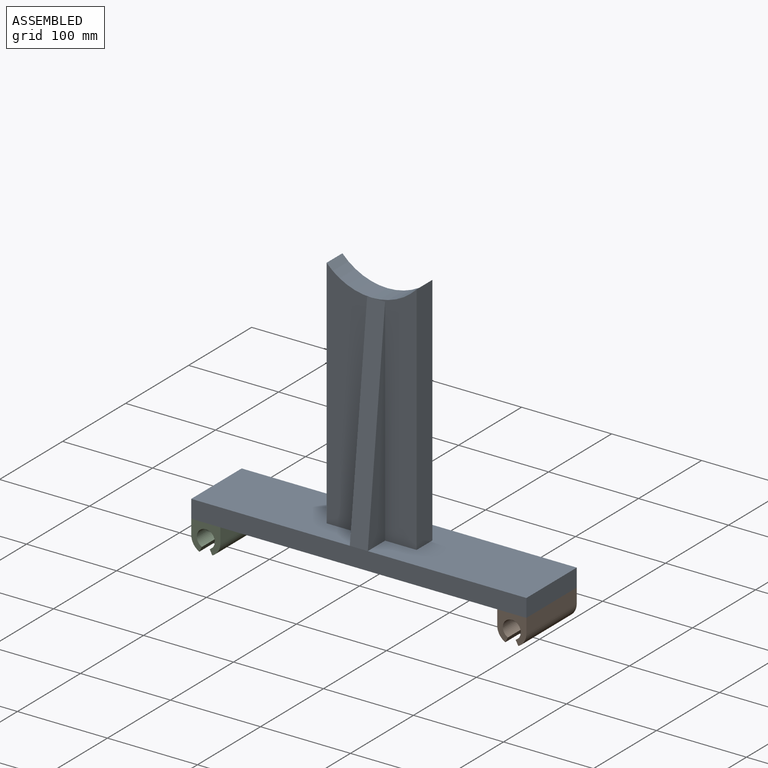
[diagram: assembled view]
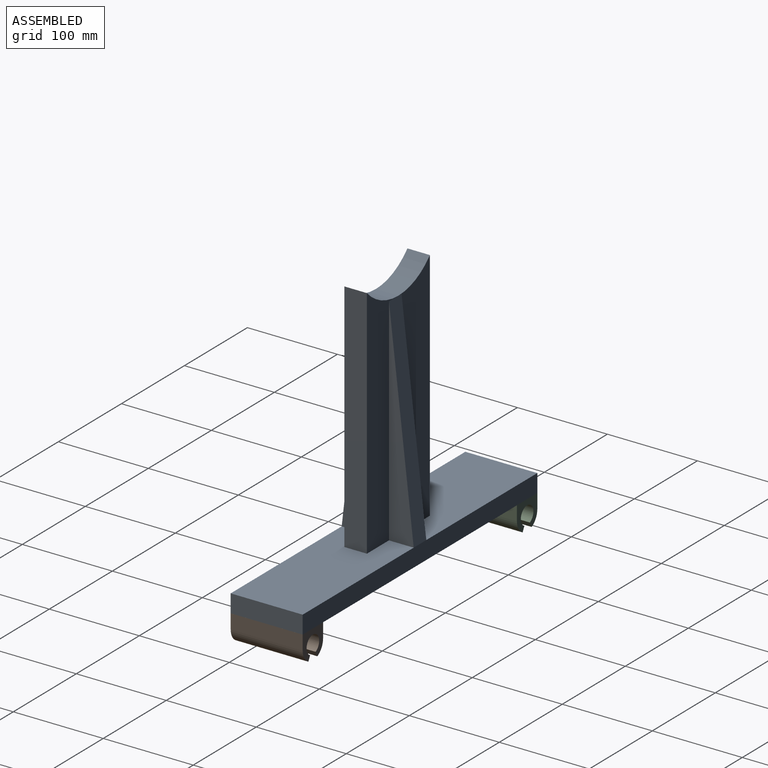
[diagram: assembled view, second angle]
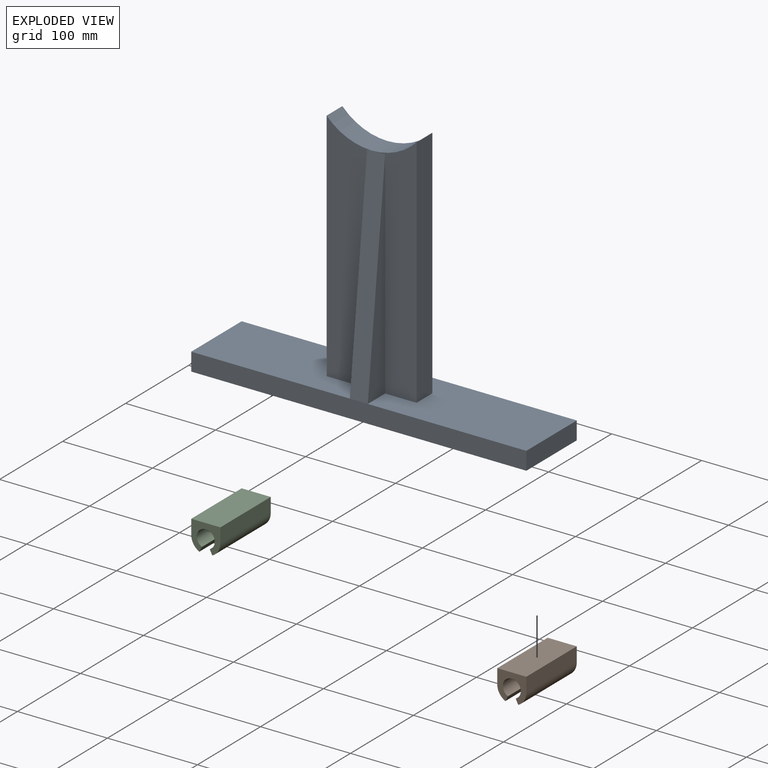
[diagram: exploded view]
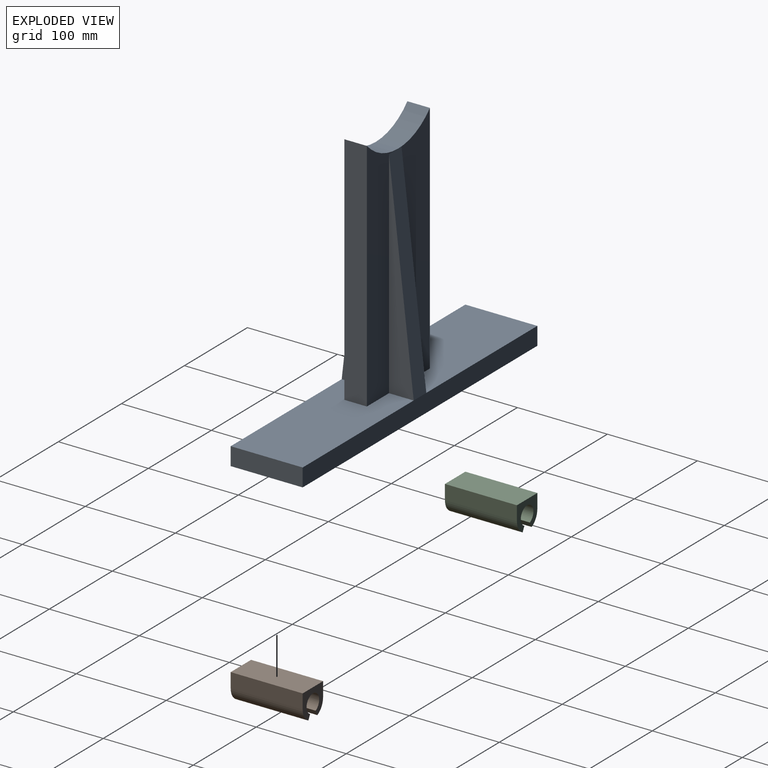
[diagram: exploded view, second angle]
ASSEMBLY  parts=3 mates=2
PART A: 20 faces, bbox 372.4x80x281.7 mm
  f0: plane 240x27.5mm, normal (1,0,0), area 3300mm2, adj f3,f4,f19
  f1: plane 240x27.5mm, normal (-1,0,0), area 3300mm2, adj f2,f5,f18
  f2: plane 176.18x80mm, normal (0,0,1), area 12969.4mm2, adj f1,f5,f6,f8,f9,f13,f14,f17
  f3: plane 261.68x50mm, normal (0,1,0), area 8734.8mm2, adj f0,f4,f12,f15,f19
  f4: plane 176.18x80mm, normal (0,0,1), area 13219.4mm2, adj f0,f3,f6,f7,f8,f11,f12,f16
  f5: plane 261.68x50mm, normal (0,-1,0), area 11134.8mm2, adj f1,f2,f14,f15,f18
  f6: plane 372.36x20mm, normal (0,-1,0), area 7447.2mm2, adj f2,f4,f7,f9,f10,f18
  f7: plane 80x20mm, normal (1,0,0), area 1600mm2, adj f4,f6,f8,f10
  f8: plane 372.36x20mm, normal (0,1,0), area 7447.2mm2, adj f2,f4,f7,f9,f10,f19
  f9: plane 80x20mm, normal (-1,0,0), area 1600mm2, adj f2,f6,f8,f10
  f10: plane 372.36x80mm, normal (0,0,-1), area 29788.8mm2, adj f6,f7,f8,f9
  f11: plane 261.68x50mm, normal (0,-1,0), area 8734.8mm2, adj f4,f12,f15,f16,f18
  f12: plane 261.68x25mm, normal (1,0,0), area 6542mm2, adj f3,f4,f11,f15
  f13: plane 261.68x50mm, normal (0,1,0), area 11134.8mm2, adj f2,f14,f15,f17,f19
  f14: plane 261.68x25mm, normal (-1,0,0), area 6542mm2, adj f2,f5,f13,f15
  f15: cylinder r=68.5mm len=100mm, axis (0,-1,0), area 2802.4mm2, adj f3,f5,f11,f12,f13,f14
  f16: plane 240x27.5mm, normal (1,0,0), area 3300mm2, adj f4,f11,f18
  f17: plane 240x27.5mm, normal (-1,0,0), area 3300mm2, adj f2,f13,f19
  f18: plane 240x27.5mm, normal (0,-0.99,0.11), area 4831.4mm2, adj f1,f5,f6,f11,f16
  f19: plane 240x27.5mm, normal (0,0.99,0.11), area 4831.4mm2, adj f0,f3,f8,f13,f17
PART B: 10 faces, bbox 32.4x80x30.7 mm
  f0: plane 80x32.36mm, normal (0,0,1), area 2588.8mm2, adj f1,f7,f8,f9
  f1: plane 80x16.18mm, normal (-1,0,0), area 1294.4mm2, adj f0,f2,f8,f9
  f2: cylinder r=16.18mm len=80mm, axis (0,1,0), area 1438.1mm2, adj f1,f3,f8,f9
  f3: plane 80x5.5mm, normal (0.89,0,-0.46), area 494.5mm2, adj f2,f4,f8,f9
  f4: cylinder r=10mm len=80mm, axis (0,1,0), area 4304.9mm2, adj f3,f5,f8,f9
  f5: plane 80x5.5mm, normal (-0.89,0,-0.46), area 494.5mm2, adj f4,f6,f8,f9
  f6: cylinder r=16.18mm len=80mm, axis (0,1,0), area 1438.1mm2, adj f5,f7,f8,f9
  f7: plane 80x16.18mm, normal (1,0,0), area 1294.4mm2, adj f0,f6,f8,f9
  f8: plane 32.36x30.68mm, normal (0,-1,0), area 546.8mm2, adj f0,f1,f2,f3,f4,f5,f6,f7
  f9: plane 32.36x30.68mm, normal (0,1,0), area 546.8mm2, adj f0,f1,f2,f3,f4,f5,f6,f7
PART C: same geometry as B
PLACE A t=(-102.76,0,-20)mm
PLACE B t=(47.24,40,-61.18)mm
PLACE C t=(-292.76,40,-61.18)mm
MATE fastened B.f0 <-> A.f10  axis (0,0,1) through (83.42,0,-20)mm
MATE fastened C.f0 <-> A.f10  axis (0,0,1) through (-288.94,0,-20)mm
